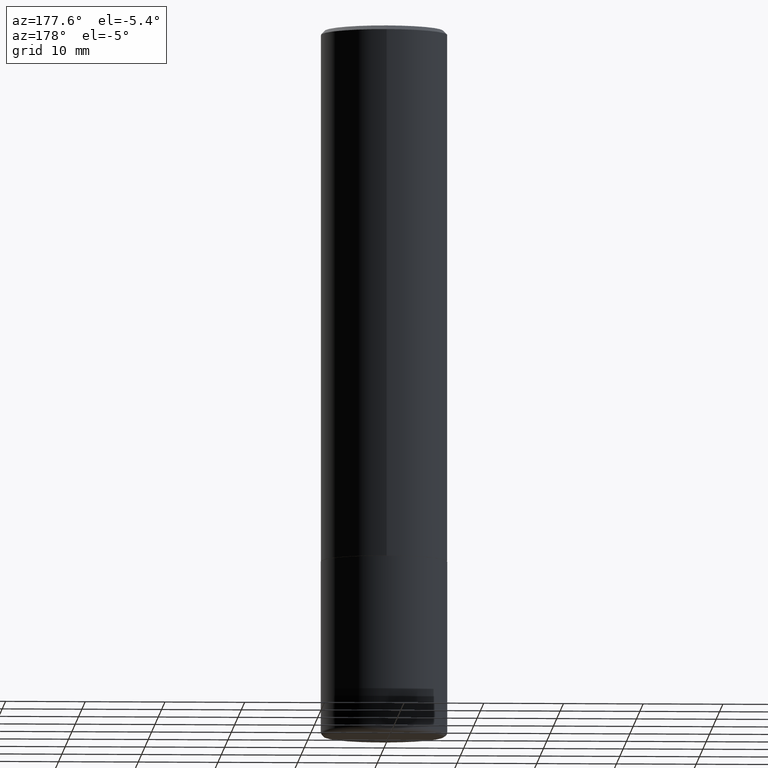
[diagram: clean part render]
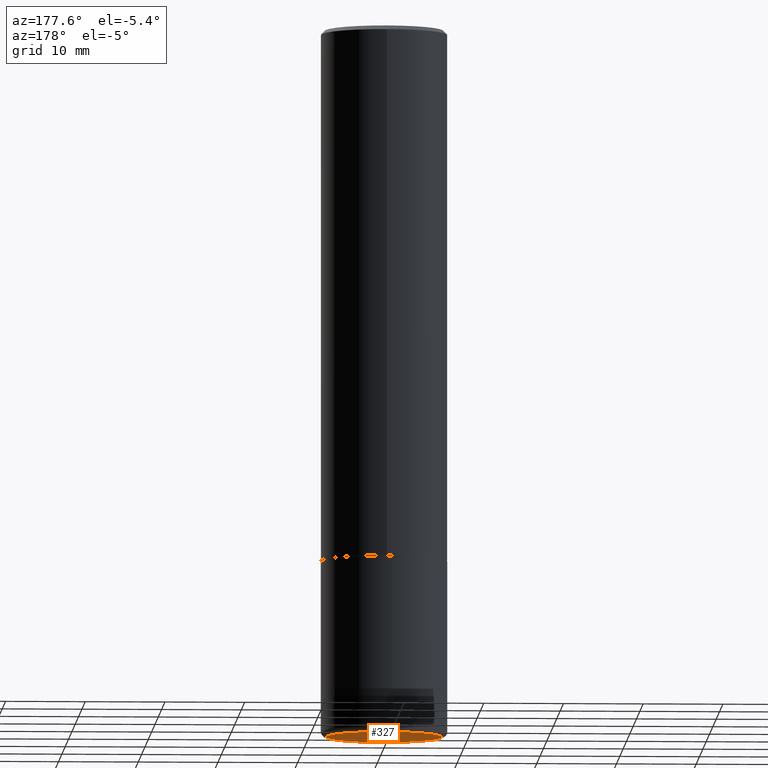
[diagram: same view with one face highlighted and labeled with its STEP entity id]
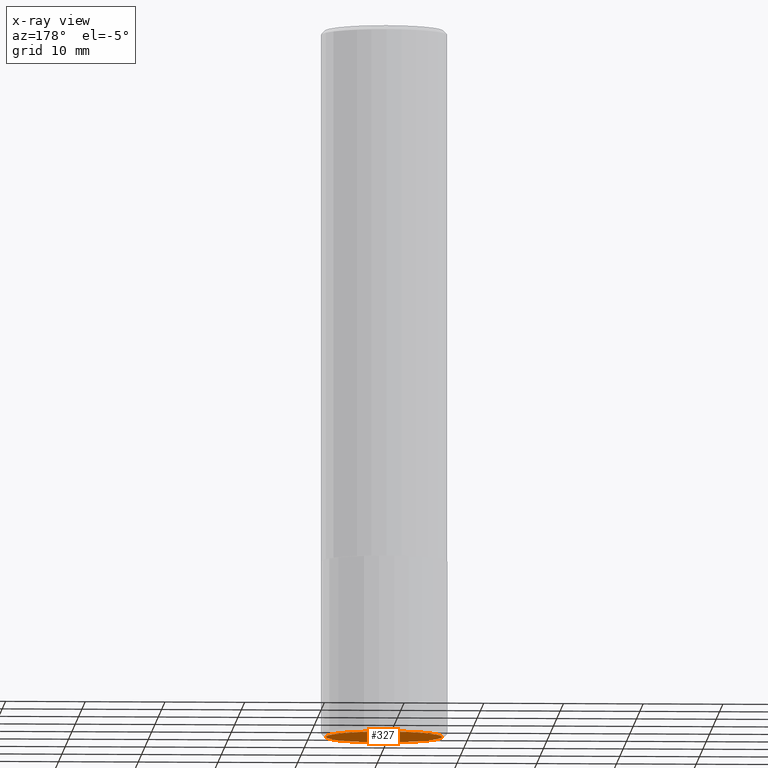
[diagram: x-ray of the same camera — body ghosted, the highlighted face saturated]
A machine part, auxiliary view. The second image highlights one B-rep face of the part: STEP entity #327.
The next image is the same camera in x-ray: the body ghosted, the highlighted face saturated — about 0% of this face is hidden behind the body in this view.
In plain terms, the highlighted planar face has unit normal (0, -0, -1).
Its self-contained STEP definition (entity closure, byte-faithful):
#1 = DIRECTION ( 'NONE',  ( 1.000000000000000000, -6.982962677686265922E-15, 0.000000000000000000 ) ) ;
#6 = FACE_OUTER_BOUND ( 'NONE', #67, .T. ) ;
#7 = AXIS2_PLACEMENT_3D ( 'NONE', #319, #381, #26 ) ;
#26 = DIRECTION ( 'NONE',  ( 1.000000000000000000, -6.982962677686265922E-15, 0.000000000000000000 ) ) ;
#67 = EDGE_LOOP ( 'NONE', ( #106, #264 ) ) ;
#98 = VERTEX_POINT ( 'NONE', #259 ) ;
#99 = PLANE ( 'NONE',  #124 ) ;
#106 = ORIENTED_EDGE ( 'NONE', *, *, #269, .F. ) ;
#114 = VERTEX_POINT ( 'NONE', #188 ) ;
#124 = AXIS2_PLACEMENT_3D ( 'NONE', #194, #230, #331 ) ;
#132 = EDGE_CURVE ( 'NONE', #114, #98, #210, .T. ) ;
#168 = DIRECTION ( 'NONE',  ( -2.445468806185136597E-29, 3.491481338843145583E-15, 1.000000000000000000 ) ) ;
#188 = CARTESIAN_POINT ( 'NONE',  ( -0.2875000000000000333, -1.004491296193516694E-14, -3.499999999999999112 ) ) ;
#194 = CARTESIAN_POINT ( 'NONE',  ( 1.320382771090319883E-28, -5.568728701377147127E-15, -3.499999999999999112 ) ) ;
#210 = CIRCLE ( 'NONE', #7, 0.2875000000000000333 ) ;
#230 = DIRECTION ( 'NONE',  ( 2.438088387897960049E-29, -3.491481338843145188E-15, -1.000000000000000000 ) ) ;
#238 = AXIS2_PLACEMENT_3D ( 'NONE', #295, #168, #1 ) ;
#259 = CARTESIAN_POINT ( 'NONE',  ( 0.2875000000000000333, -1.422778645578580787E-14, -3.499999999999999112 ) ) ;
#264 = ORIENTED_EDGE ( 'NONE', *, *, #132, .F. ) ;
#269 = EDGE_CURVE ( 'NONE', #98, #114, #409, .T. ) ;
#295 = CARTESIAN_POINT ( 'NONE',  ( 8.559140821647976968E-29, -1.222018468595100619E-14, -3.499999999999999112 ) ) ;
#319 = CARTESIAN_POINT ( 'NONE',  ( 8.559140821647976968E-29, -1.222018468595100619E-14, -3.499999999999999112 ) ) ;
#327 = ADVANCED_FACE ( 'NONE', ( #6 ), #99, .T. ) ;
#331 = DIRECTION ( 'NONE',  ( -1.000000000000000000, 6.982962677686265922E-15, -4.876176775795935793E-29 ) ) ;
#381 = DIRECTION ( 'NONE',  ( -2.445468806185136597E-29, 3.491481338843145583E-15, 1.000000000000000000 ) ) ;
#409 = CIRCLE ( 'NONE', #238, 0.2875000000000000333 ) ;